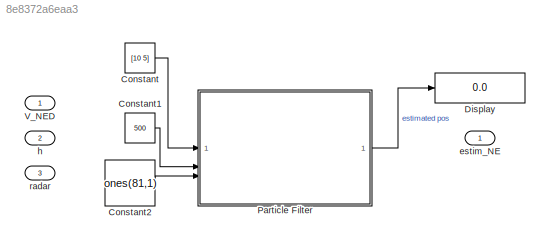
MODEL slx_8e8372a6eaa3
KIND model
CONFIG AbsTol = auto
CONFIG EnableMultiTasking = off
CONFIG FixedStep = auto
CONFIG MaxStep = auto
CONFIG MinStep = auto
CONFIG RelTol = 1e-3
CONFIG SampleTimeConstraint = Unconstrained
CONFIG SolverName = VariableStepAuto
CONFIG StartTime = 0.0
CONFIG StopTime = 10.0
BLOCK [Constant] Constant
  Value = [10 5]
BLOCK [Constant] Constant1
  Value = 500
BLOCK [Constant] Constant2
  Value = ones(81,1)
BLOCK [Display] Display
  Decimation = 1
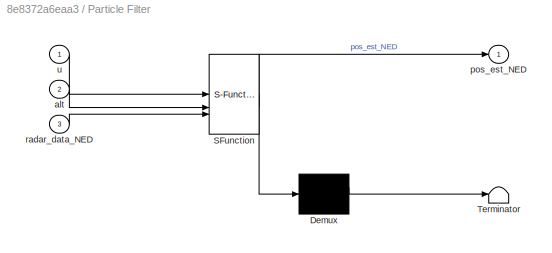
BLOCK [SubSystem] Particle Filter
  ErrorFcn = Stateflow.Translate.translate
  LibrarySourceBlock = simulink/User-Defined\nFunctions/MATLAB Function
  PermitHierarchicalResolution = ExplicitOnly
  SFBlockType = MATLAB Function
  TreatAsAtomicUnit = on
BLOCK [Demux] Particle Filter/ Demux 
  Outputs = 1
BLOCK [S-Function] Particle Filter/ SFunction 
  EnableBusSupport = on
  FunctionName = sf_sfun
  PortCounts = [3 2]
  SFcnIsStateOwnerBlock = off
  SFunctionDeploymentMode = off
  Tag = Stateflow S-Function 2
BLOCK [Terminator] Particle Filter/ Terminator 
BLOCK [Inport] Particle Filter/alt
  Port = 2
BLOCK [Outport] Particle Filter/pos_est_NED
BLOCK [Inport] Particle Filter/radar_data_NED
  Port = 3
BLOCK [Inport] Particle Filter/u
BLOCK [Inport] V_NED
BLOCK [Outport] estim_NE
BLOCK [Inport] h
  Port = 2
BLOCK [Inport] radar
  Port = 3
LINE Constant1:1 -> Particle Filter:2
LINE Constant2:1 -> Particle Filter:3
LINE Constant:1 -> Particle Filter:1
LINE Particle Filter:1 -> Display:1
CHART Particle Filter states=1 transitions=1
  STATE_LABEL 'eML_blk_kernel()'
  STATE_LABEL "SCRIPT:\nfunction pos_est_NED  = PF_fun(u, alt, radar_data_NED)\ncoder.extrinsic('PF_config_sim')\n\npersistent PF\nif isempty(PF) \n    PF = PF_config_sim;\nend\n\n\n% input vector consist of V_N and V_E, those 2 array will be used for\n% particles movement through particles kinematic model\n% u = [V_N  V_E]; % input vector\n\n% pos_cur_NED = current position of aircraft in NED\n\n% Radar Data\n% Radar Data is a ...<+679ch>"
CHART  states=0 transitions=0
